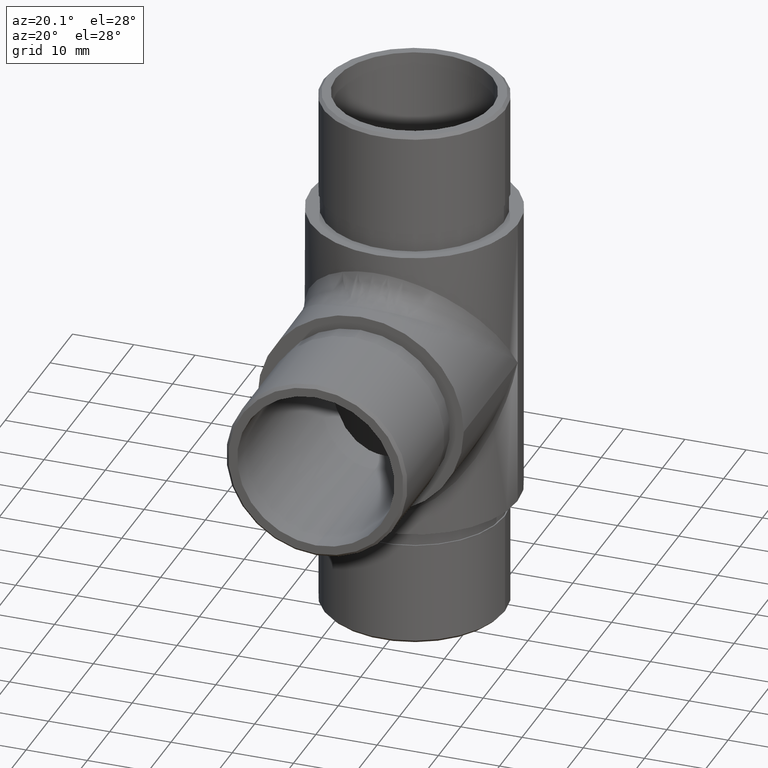
[diagram: clean part render]
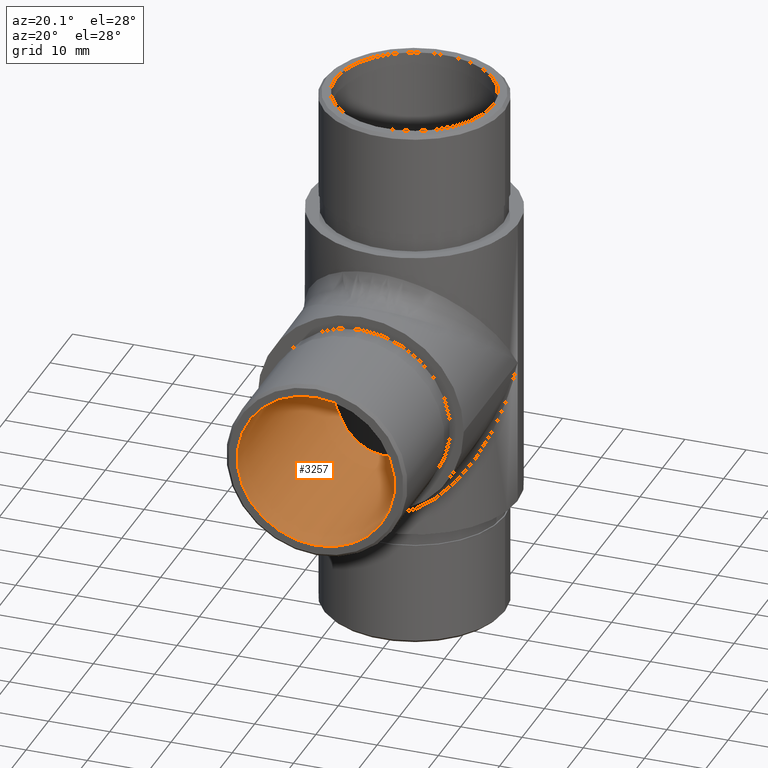
[diagram: same view with one face highlighted and labeled with its STEP entity id]
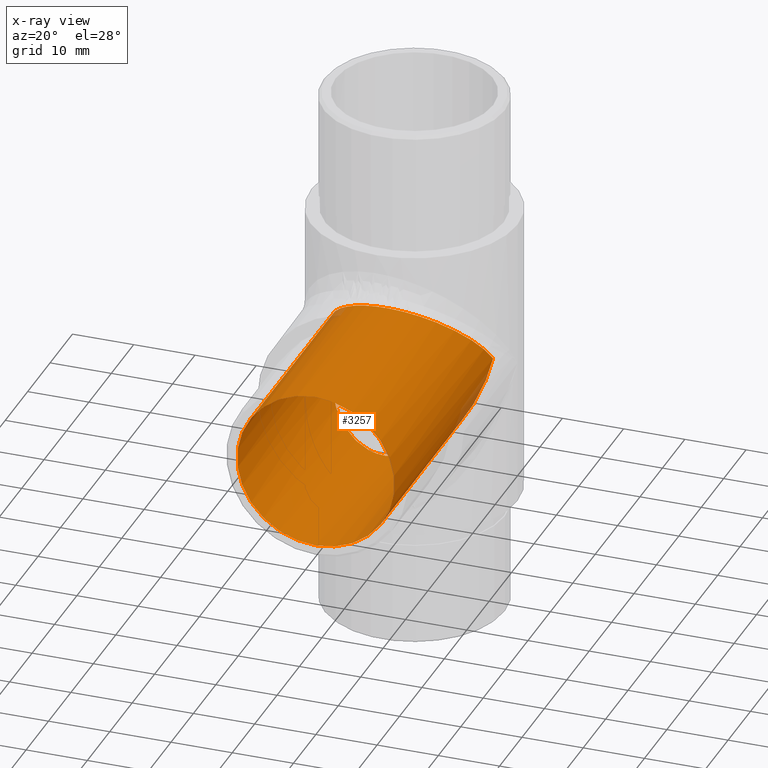
[diagram: x-ray of the same camera — body ghosted, the highlighted face saturated]
A machine part, auxiliary view. The second image highlights one B-rep face of the part: STEP entity #3257.
The next image is the same camera in x-ray: the body ghosted, the highlighted face saturated — about 1% of this face is hidden behind the body in this view.
In plain terms, the highlighted cylindrical surface (bore or boss wall) has radius 12.85 mm, axis along (-0, -1, -0).
Its self-contained STEP definition (entity closure, byte-faithful):
#278 =( BOUNDED_CURVE ( )  B_SPLINE_CURVE ( 3, ( #9243, #3050, #4792, #378 ),
 .UNSPECIFIED., .F., .T. ) 
 B_SPLINE_CURVE_WITH_KNOTS ( ( 4, 4 ),
 ( 4.712388980384689700, 7.853981633974482800 ),
 .UNSPECIFIED. ) 
 CURVE ( )  GEOMETRIC_REPRESENTATION_ITEM ( )  RATIONAL_B_SPLINE_CURVE ( ( 1.000000000000000000, 0.3333333333333333700, 0.3333333333333333700, 1.000000000000000000 ) ) 
 REPRESENTATION_ITEM ( '' )  );
#378 = CARTESIAN_POINT ( 'NONE',  ( -12.85000000000000000, 44.00000000000000000, 0.0000000000000000000 ) ) ;
#492 = CYLINDRICAL_SURFACE ( 'NONE', #5777, 12.85000000000000000 ) ;
#2326 = CARTESIAN_POINT ( 'NONE',  ( -12.85000000000000000, 44.00000000000000000, 0.0000000000000000000 ) ) ;
#2348 = CARTESIAN_POINT ( 'NONE',  ( 0.0000000000000000000, 0.0000000000000000000, 0.0000000000000000000 ) ) ;
#2367 = AXIS2_PLACEMENT_3D ( 'NONE', #2348, #3056, #6621 ) ;
#2649 = EDGE_CURVE ( 'NONE', #2925, #2925, #6262, .T. ) ;
#2925 = VERTEX_POINT ( 'NONE', #5631 ) ;
#3050 = CARTESIAN_POINT ( 'NONE',  ( 12.85000000000000100, 18.30000000000000400, 25.69999999999999200 ) ) ;
#3056 = DIRECTION ( 'NONE',  ( 0.0000000000000000000, -1.000000000000000000, 0.0000000000000000000 ) ) ;
#3257 = ADVANCED_FACE ( 'NONE', ( #3726, #10912 ), #492, .F. ) ;
#3435 = CARTESIAN_POINT ( 'NONE',  ( -12.85000000000000100, 18.30000000000000400, -25.69999999999999200 ) ) ;
#3477 = CARTESIAN_POINT ( 'NONE',  ( -12.85000000000000000, 44.00000000000000000, 0.0000000000000000000 ) ) ;
#3726 = FACE_OUTER_BOUND ( 'NONE', #8422, .T. ) ;
#4242 = CARTESIAN_POINT ( 'NONE',  ( 12.85000000000000000, 44.00000000000000000, 0.0000000000000000000 ) ) ;
#4613 = CARTESIAN_POINT ( 'NONE',  ( 0.0000000000000000000, 500000.0000000000600, 0.0000000000000000000 ) ) ;
#4792 = CARTESIAN_POINT ( 'NONE',  ( -12.84999999999999600, 18.30000000000000400, 25.69999999999999200 ) ) ;
#4923 = VERTEX_POINT ( 'NONE', #7242 ) ;
#5631 = CARTESIAN_POINT ( 'NONE',  ( 0.0000000000000000000, 0.0000000000000000000, -12.85000000000000000 ) ) ;
#5648 = EDGE_CURVE ( 'NONE', #4923, #6733, #278, .T. ) ;
#5777 = AXIS2_PLACEMENT_3D ( 'NONE', #4613, #6269, #7285 ) ;
#6262 = CIRCLE ( 'NONE', #2367, 12.85000000000000000 ) ;
#6269 = DIRECTION ( 'NONE',  ( -0.0000000000000000000, -1.000000000000000000, -0.0000000000000000000 ) ) ;
#6621 = DIRECTION ( 'NONE',  ( 0.0000000000000000000, 0.0000000000000000000, -1.000000000000000000 ) ) ;
#6733 = VERTEX_POINT ( 'NONE', #2326 ) ;
#6863 =( BOUNDED_CURVE ( )  B_SPLINE_CURVE ( 3, ( #3477, #3435, #11586, #4242 ),
 .UNSPECIFIED., .F., .T. ) 
 B_SPLINE_CURVE_WITH_KNOTS ( ( 4, 4 ),
 ( 4.712388980384689700, 7.853981633974482800 ),
 .UNSPECIFIED. ) 
 CURVE ( )  GEOMETRIC_REPRESENTATION_ITEM ( )  RATIONAL_B_SPLINE_CURVE ( ( 1.000000000000000000, 0.3333333333333333700, 0.3333333333333333700, 1.000000000000000000 ) ) 
 REPRESENTATION_ITEM ( '' )  );
#7242 = CARTESIAN_POINT ( 'NONE',  ( 12.85000000000000000, 44.00000000000000000, 0.0000000000000000000 ) ) ;
#7285 = DIRECTION ( 'NONE',  ( 0.0000000000000000000, 0.0000000000000000000, -1.000000000000000000 ) ) ;
#8031 = ORIENTED_EDGE ( 'NONE', *, *, #2649, .T. ) ;
#8422 = EDGE_LOOP ( 'NONE', ( #10826, #9588 ) ) ;
#9243 = CARTESIAN_POINT ( 'NONE',  ( 12.85000000000000000, 44.00000000000000000, 0.0000000000000000000 ) ) ;
#9588 = ORIENTED_EDGE ( 'NONE', *, *, #5648, .F. ) ;
#10005 = EDGE_LOOP ( 'NONE', ( #8031 ) ) ;
#10188 = EDGE_CURVE ( 'NONE', #6733, #4923, #6863, .T. ) ;
#10826 = ORIENTED_EDGE ( 'NONE', *, *, #10188, .F. ) ;
#10912 = FACE_OUTER_BOUND ( 'NONE', #10005, .T. ) ;
#11586 = CARTESIAN_POINT ( 'NONE',  ( 12.84999999999999600, 18.30000000000000400, -25.69999999999999200 ) ) ;